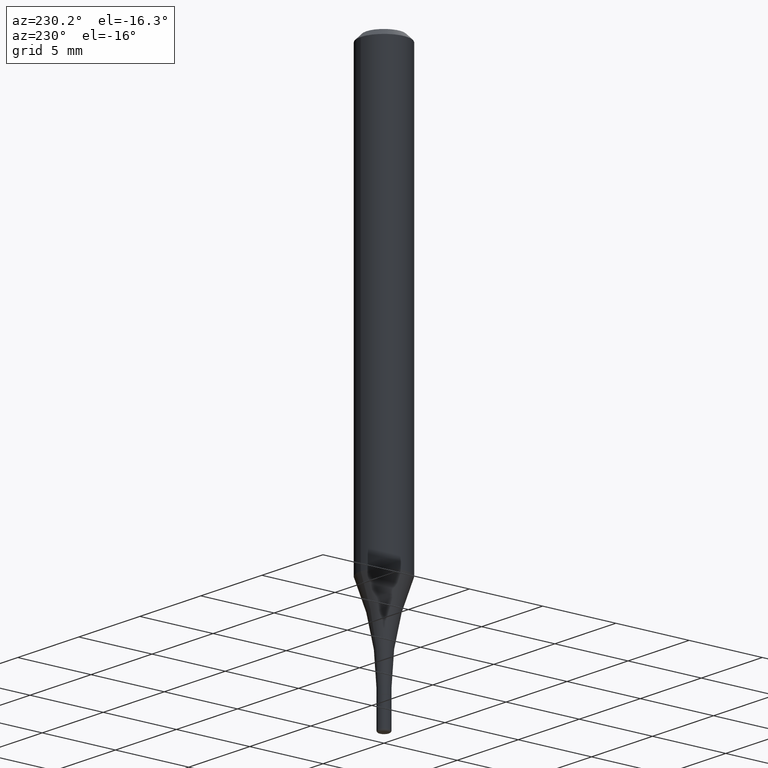
[diagram: clean part render]
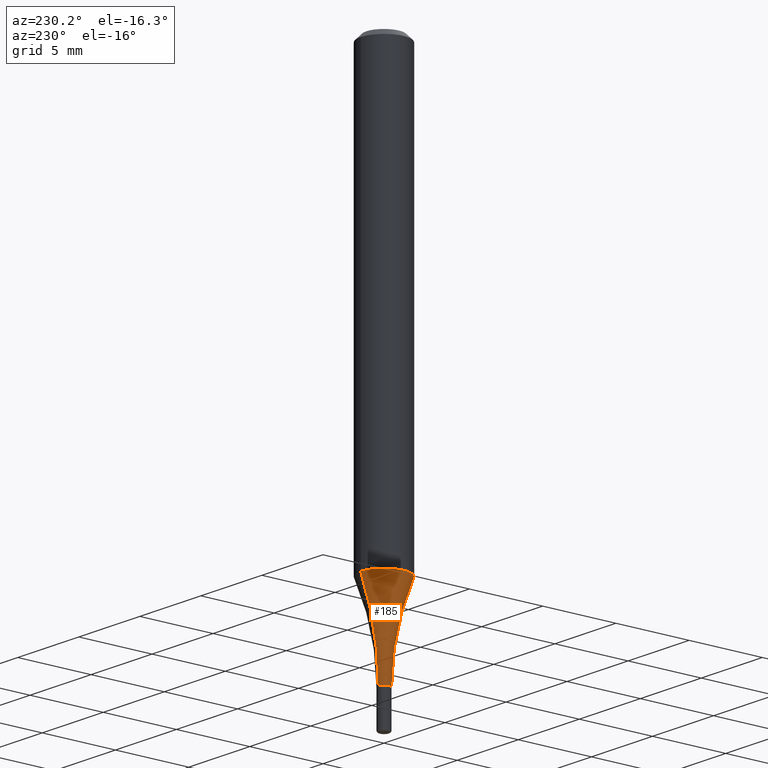
[diagram: same view with one face highlighted and labeled with its STEP entity id]
A machine part, auxiliary view. The second image highlights one B-rep face of the part: STEP entity #185.
In plain terms, the highlighted toroidal blend (fillet) surface has major radius 16.2712 mm and minor (blend) radius 15.875 mm.
Its self-contained STEP definition (entity closure, byte-faithful):
#2 = AXIS2_PLACEMENT_3D ( 'NONE', #54, #495, #130 ) ;
#25 = CARTESIAN_POINT ( 'NONE',  ( -4.364351673553640100E-16, -0.06250000000000409395, -1.164459708680822603 ) ) ;
#33 = CARTESIAN_POINT ( 'NONE',  ( -1.089342177718721665E-16, -0.01560000000000499702, -1.402000000000000579 ) ) ;
#54 = CARTESIAN_POINT ( 'NONE',  ( -4.473285891325789329E-15, -0.6406000000000050543, -1.401999999999998359 ) ) ;
#58 = AXIS2_PLACEMENT_3D ( 'NONE', #511, #99, #434 ) ;
#99 = DIRECTION ( 'NONE',  ( -2.445210917823208217E-29, 3.491850649655521021E-15, 1.000000000000000000 ) ) ;
#116 = CARTESIAN_POINT ( 'NONE',  ( 4.551736765279235337E-15, 0.6405999999999951733, -1.402000000000002800 ) ) ;
#120 = VERTEX_POINT ( 'NONE', #25 ) ;
#130 = DIRECTION ( 'NONE',  ( -6.982962677686264344E-15, -1.000000000000000000, 0.000000000000000000 ) ) ;
#136 = CIRCLE ( 'NONE', #432, 0.6250000000000001110 ) ;
#150 = CIRCLE ( 'NONE', #58, 0.06250000000000001388 ) ;
#153 = VERTEX_POINT ( 'NONE', #33 ) ;
#155 = CIRCLE ( 'NONE', #449, 0.01560000000000010163 ) ;
#171 = VERTEX_POINT ( 'NONE', #398 ) ;
#185 = ADVANCED_FACE ( 'NONE', ( #201 ), #335, .F. ) ;
#201 = FACE_OUTER_BOUND ( 'NONE', #251, .T. ) ;
#207 = EDGE_CURVE ( 'NONE', #348, #120, #150, .T. ) ;
#216 = CARTESIAN_POINT ( 'NONE',  ( 3.428185706788139494E-29, -4.895574610817042911E-15, -1.402000000000000579 ) ) ;
#251 = EDGE_LOOP ( 'NONE', ( #445, #407, #510, #344 ) ) ;
#253 = CARTESIAN_POINT ( 'NONE',  ( 4.440892098500906207E-16, 0.06249999999999589911, -1.164459708680822825 ) ) ;
#257 = DIRECTION ( 'NONE',  ( -6.982962677686265922E-15, -1.000000000000000000, 0.000000000000000000 ) ) ;
#284 = DIRECTION ( 'NONE',  ( 7.105427357600999492E-15, 1.000000000000000000, 0.000000000000000000 ) ) ;
#301 = EDGE_CURVE ( 'NONE', #348, #171, #136, .T. ) ;
#315 = DIRECTION ( 'NONE',  ( -6.982962677686265922E-15, -1.000000000000000000, 3.491850649655521416E-15 ) ) ;
#334 = DIRECTION ( 'NONE',  ( -2.445210917823208217E-29, 3.491850649655521021E-15, 1.000000000000000000 ) ) ;
#335 = TOROIDAL_SURFACE ( 'NONE', #410, 0.6406000000000001693, 0.6250000000000000000 ) ;
#344 = ORIENTED_EDGE ( 'NONE', *, *, #427, .F. ) ;
#348 = VERTEX_POINT ( 'NONE', #253 ) ;
#349 = DIRECTION ( 'NONE',  ( -2.445210917823208217E-29, 3.491850649655521021E-15, 1.000000000000000000 ) ) ;
#364 = DIRECTION ( 'NONE',  ( 1.000000000000000000, -7.105427357601001070E-15, 4.926320031295124979E-29 ) ) ;
#370 = EDGE_CURVE ( 'NONE', #171, #153, #155, .T. ) ;
#398 = CARTESIAN_POINT ( 'NONE',  ( 2.774669383143507854E-16, 0.01559999999999520451, -1.402000000000000579 ) ) ;
#407 = ORIENTED_EDGE ( 'NONE', *, *, #301, .T. ) ;
#410 = AXIS2_PLACEMENT_3D ( 'NONE', #517, #349, #315 ) ;
#425 = CIRCLE ( 'NONE', #2, 0.6250000000000001110 ) ;
#427 = EDGE_CURVE ( 'NONE', #120, #153, #425, .T. ) ;
#432 = AXIS2_PLACEMENT_3D ( 'NONE', #116, #364, #284 ) ;
#434 = DIRECTION ( 'NONE',  ( -6.982962677686265922E-15, -1.000000000000000000, 4.370956789862820361E-15 ) ) ;
#445 = ORIENTED_EDGE ( 'NONE', *, *, #207, .F. ) ;
#449 = AXIS2_PLACEMENT_3D ( 'NONE', #216, #334, #257 ) ;
#495 = DIRECTION ( 'NONE',  ( -1.000000000000000000, 6.982962677686265922E-15, -4.883557194083112340E-29 ) ) ;
#510 = ORIENTED_EDGE ( 'NONE', *, *, #370, .T. ) ;
#511 = CARTESIAN_POINT ( 'NONE',  ( 2.847349593031579707E-29, -4.066119390254809965E-15, -1.164459708680822603 ) ) ;
#517 = CARTESIAN_POINT ( 'NONE',  ( 3.428547266271562890E-29, -4.895056837058092433E-15, -1.402000000000000579 ) ) ;